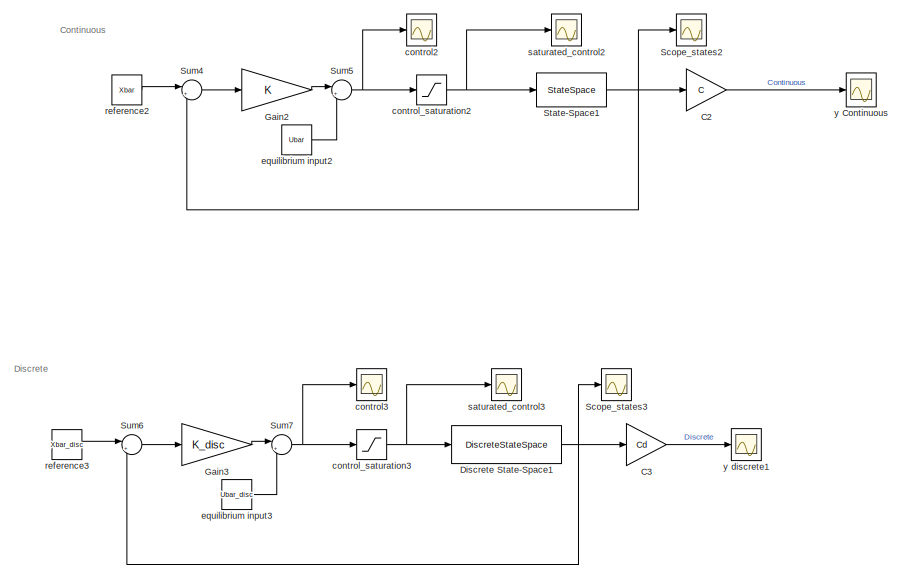
[diagram: root canvas - part 1/2, left side, full height]
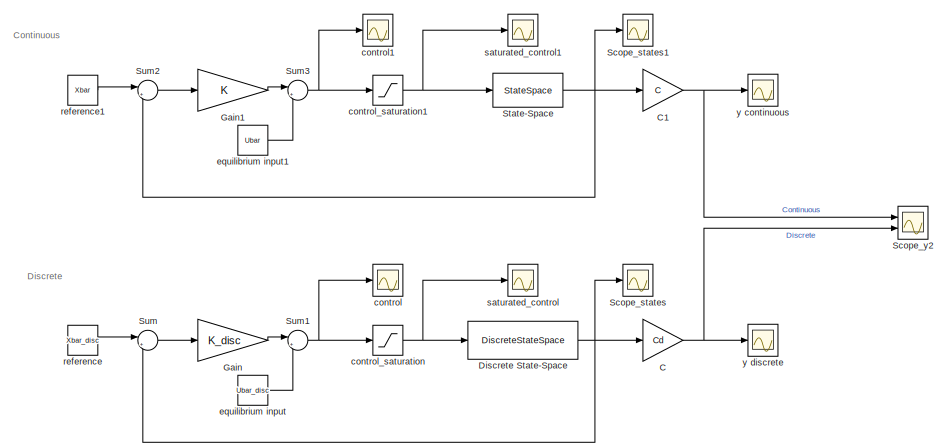
[diagram: root canvas - part 2/2, middle right region]
MODEL slx_b519e00f256d
KIND model
CONFIG AbsTol = auto
CONFIG EnableMultiTasking = off
CONFIG FixedStep = auto
CONFIG MaxStep = auto
CONFIG MinStep = auto
CONFIG RelTol = 1e-3
CONFIG SampleTimeConstraint = Unconstrained
CONFIG SolverName = VariableStepAuto
CONFIG StartTime = 0.0
CONFIG StopTime = 10.0
BLOCK [Gain] C
  Gain = Cd
  Multiplication = Matrix(K*u)
BLOCK [Gain] C1
  Gain = C
  Multiplication = Matrix(K*u)
BLOCK [Gain] C2
  Gain = C
  Multiplication = Matrix(K*u)
BLOCK [Gain] C3
  Gain = Cd
  Multiplication = Matrix(K*u)
BLOCK [DiscreteStateSpace] Discrete State-Space
  A = Ad
  B = Bd
  C = C_states
  D = D_states
  SampleTime = Ts
BLOCK [DiscreteStateSpace] Discrete State-Space1
  A = Ad
  B = Bd
  C = C_states
  D = D_states
  SampleTime = Ts
BLOCK [Gain] Gain
  Gain = K_disc
  Multiplication = Matrix(K*u)
BLOCK [Gain] Gain1
  Gain = K
  Multiplication = Matrix(K*u)
BLOCK [Gain] Gain2
  Gain = K
  Multiplication = Matrix(K*u)
BLOCK [Gain] Gain3
  Gain = K_disc
  Multiplication = Matrix(K*u)
BLOCK [Scope] Scope_states
  Floating = off
  NumInputPorts = 1
  Ports = [1]
  ScopeSpecificationString = Simulink.scopes.TimeScopeBlockCfg('CurrentConfiguration', extmgr.ConfigurationSet(extmgr.Configuration('Core','General UI',true),extmgr.Configuration('Core','Source UI',true),extmgr.Configuration('Sources','WiredSimulink',true,'DataLoggingSaveFormat','StructureWithTime','DataLoggingLimitDataPoints',true,'DataLoggingDecimation','1','DataLoggingDecimateData',true,'DataLoggingVariableName','ScopeData...<+2094ch>
BLOCK [Scope] Scope_states1
  Floating = off
  NumInputPorts = 1
  Ports = [1]
  ScopeSpecificationString = Simulink.scopes.TimeScopeBlockCfg('CurrentConfiguration', extmgr.ConfigurationSet(extmgr.Configuration('Core','General UI',true),extmgr.Configuration('Core','Source UI',true),extmgr.Configuration('Sources','WiredSimulink',true,'DataLoggingSaveFormat','StructureWithTime','DataLoggingLimitDataPoints',true,'DataLoggingDecimation','1','DataLoggingDecimateData',true,'DataLoggingVariableName','ScopeData...<+1960ch>
BLOCK [Scope] Scope_states2
  Floating = off
  NumInputPorts = 1
  Ports = [1]
  ScopeSpecificationString = Simulink.scopes.TimeScopeBlockCfg('CurrentConfiguration', extmgr.ConfigurationSet(extmgr.Configuration('Core','General UI',true),extmgr.Configuration('Core','Source UI',true),extmgr.Configuration('Sources','WiredSimulink',true,'DataLoggingSaveFormat','StructureWithTime','DataLoggingLimitDataPoints',true,'DataLoggingDecimation','1','DataLoggingDecimateData',true,'DataLoggingVariableName','ScopeData...<+1972ch>
BLOCK [Scope] Scope_states3
  Floating = off
  NumInputPorts = 1
  Ports = [1]
  ScopeSpecificationString = Simulink.scopes.TimeScopeBlockCfg('CurrentConfiguration', extmgr.ConfigurationSet(extmgr.Configuration('Core','General UI',true),extmgr.Configuration('Core','Source UI',true),extmgr.Configuration('Sources','WiredSimulink',true,'DataLoggingSaveFormat','StructureWithTime','DataLoggingLimitDataPoints',true,'DataLoggingDecimation','1','DataLoggingDecimateData',true,'DataLoggingVariableName','ScopeData...<+2076ch>
BLOCK [Scope] Scope_y2
  Floating = off
  NumInputPorts = 2
  Ports = [2]
  ScopeSpecificationString = Simulink.scopes.TimeScopeBlockCfg('CurrentConfiguration', extmgr.ConfigurationSet(extmgr.Configuration('Core','General UI',true),extmgr.Configuration('Core','Source UI',true),extmgr.Configuration('Sources','WiredSimulink',true,'DataLoggingSaveFormat','StructureWithTime','DataLoggingLimitDataPoints',true,'DataLoggingDecimation','1','DataLoggingDecimateData',true,'DataLoggingVariableName','ScopeData...<+1836ch>
BLOCK [StateSpace] State-Space
  A = A
  B = B
  C = C_states
  D = D_states
  InitialCondition = 0
  Ports = [1, 1]
BLOCK [StateSpace] State-Space1
  A = A
  B = B
  C = C_states
  D = D_states
  InitialCondition = 0
  Ports = [1, 1]
BLOCK [Sum] Sum
  Inputs = |+-
  Ports = [2, 1]
BLOCK [Sum] Sum1
  Inputs = |++
  Ports = [2, 1]
BLOCK [Sum] Sum2
  Inputs = |+-
  Ports = [2, 1]
BLOCK [Sum] Sum3
  Inputs = |++
  Ports = [2, 1]
BLOCK [Sum] Sum4
  Inputs = |+-
  Ports = [2, 1]
BLOCK [Sum] Sum5
  Inputs = |++
  Ports = [2, 1]
BLOCK [Sum] Sum6
  Inputs = |+-
  Ports = [2, 1]
BLOCK [Sum] Sum7
  Inputs = |++
  Ports = [2, 1]
BLOCK [Scope] control
  Floating = off
  NumInputPorts = 1
  Ports = [1]
  ScopeSpecificationString = Simulink.scopes.TimeScopeBlockCfg('CurrentConfiguration', extmgr.ConfigurationSet(extmgr.Configuration('Core','General UI',true),extmgr.Configuration('Core','Source UI',true),extmgr.Configuration('Sources','WiredSimulink',true,'DataLoggingVariableName','ScopeData3','DataLoggingSaveFormat','StructureWithTime','DataLoggingLimitDataPoints',true,'DataLoggingDecimation','1','DataLoggingDecimateData',tr...<+1698ch>  <repeated x3 — deduplicated; at blocks: control, control1, control2>
BLOCK [Scope] control1
  Floating = off
  NumInputPorts = 1
  Ports = [1]
BLOCK [Scope] control2
  Floating = off
  NumInputPorts = 1
  Ports = [1]
BLOCK [Scope] control3
  Floating = off
  NumInputPorts = 1
  Ports = [1]
  ScopeSpecificationString = Simulink.scopes.TimeScopeBlockCfg('CurrentConfiguration', extmgr.ConfigurationSet(extmgr.Configuration('Core','General UI',true),extmgr.Configuration('Core','Source UI',true),extmgr.Configuration('Sources','WiredSimulink',true,'DataLoggingVariableName','ScopeData6','DataLoggingSaveFormat','StructureWithTime','DataLoggingLimitDataPoints',true,'DataLoggingDecimation','1','DataLoggingDecimateData',tr...<+1698ch>
BLOCK [Saturate] control_saturation
  LowerLimit = U_min
  UpperLimit = U_max
BLOCK [Saturate] control_saturation1
  LowerLimit = U_min
  UpperLimit = U_max
BLOCK [Saturate] control_saturation2
  LowerLimit = U_min
  UpperLimit = U_max
BLOCK [Saturate] control_saturation3
  LowerLimit = U_min
  UpperLimit = U_max
BLOCK [Constant] equilibrium input
  Value = Ubar_disc
BLOCK [Constant] equilibrium input1
  Value = Ubar
BLOCK [Constant] equilibrium input2
  Value = Ubar
BLOCK [Constant] equilibrium input3
  Value = Ubar_disc
BLOCK [Constant] reference
  Value = Xbar_disc
BLOCK [Constant] reference1
  Value = Xbar
BLOCK [Constant] reference2
  Value = Xbar
BLOCK [Constant] reference3
  Value = Xbar_disc
BLOCK [Scope] saturated_control
  Floating = off
  NumInputPorts = 1
  Ports = [1]
  ScopeSpecificationString = Simulink.scopes.TimeScopeBlockCfg('CurrentConfiguration', extmgr.ConfigurationSet(extmgr.Configuration('Core','General UI',true),extmgr.Configuration('Core','Source UI',true),extmgr.Configuration('Sources','WiredSimulink',true,'DataLoggingSaveFormat','StructureWithTime','DataLoggingLimitDataPoints',true,'DataLoggingDecimation','1','DataLoggingDecimateData',true,'DataLoggingVariableName','ScopeData...<+1987ch>
BLOCK [Scope] saturated_control1
  Floating = off
  NumInputPorts = 1
  Ports = [1]
  ScopeSpecificationString = Simulink.scopes.TimeScopeBlockCfg('CurrentConfiguration', extmgr.ConfigurationSet(extmgr.Configuration('Core','General UI',true),extmgr.Configuration('Core','Source UI',true),extmgr.Configuration('Sources','WiredSimulink',true,'DataLoggingVariableName','ScopeData4','DataLoggingSaveFormat','StructureWithTime','DataLoggingLimitDataPoints',true,'DataLoggingDecimation','1','DataLoggingDecimateData',tr...<+1974ch>
BLOCK [Scope] saturated_control2
  Floating = off
  NumInputPorts = 1
  Ports = [1]
  ScopeSpecificationString = Simulink.scopes.TimeScopeBlockCfg('CurrentConfiguration', extmgr.ConfigurationSet(extmgr.Configuration('Core','General UI',true),extmgr.Configuration('Core','Source UI',true),extmgr.Configuration('Sources','WiredSimulink',true,'DataLoggingVariableName','ScopeData4','DataLoggingSaveFormat','StructureWithTime','DataLoggingLimitDataPoints',true,'DataLoggingDecimation','1','DataLoggingDecimateData',tr...<+1974ch>
BLOCK [Scope] saturated_control3
  Floating = off
  NumInputPorts = 1
  Ports = [1]
  ScopeSpecificationString = Simulink.scopes.TimeScopeBlockCfg('CurrentConfiguration', extmgr.ConfigurationSet(extmgr.Configuration('Core','General UI',true),extmgr.Configuration('Core','Source UI',true),extmgr.Configuration('Sources','WiredSimulink',true,'DataLoggingSaveFormat','StructureWithTime','DataLoggingLimitDataPoints',true,'DataLoggingDecimation','1','DataLoggingDecimateData',true,'DataLoggingVariableName','ScopeData...<+1987ch>
BLOCK [Scope] y Continuous
  Floating = off
  NumInputPorts = 1
  Ports = [1]
  ScopeSpecificationString = Simulink.scopes.TimeScopeBlockCfg('CurrentConfiguration', extmgr.ConfigurationSet(extmgr.Configuration('Core','General UI',true),extmgr.Configuration('Core','Source UI',true),extmgr.Configuration('Sources','WiredSimulink',true,'DataLoggingSaveFormat','StructureWithTime','DataLoggingLimitDataPoints',true,'DataLoggingDecimation','1','DataLoggingDecimateData',true,'DataLoggingVariableName','ScopeData...<+1825ch>
BLOCK [Scope] y continuous
  Floating = off
  NumInputPorts = 1
  Ports = [1]
  ScopeSpecificationString = Simulink.scopes.TimeScopeBlockCfg('CurrentConfiguration', extmgr.ConfigurationSet(extmgr.Configuration('Core','General UI',true),extmgr.Configuration('Core','Source UI',true),extmgr.Configuration('Sources','WiredSimulink',true,'DataLoggingSaveFormat','StructureWithTime','DataLoggingLimitDataPoints',true,'DataLoggingDecimation','1','DataLoggingDecimateData',true,'DataLoggingVariableName','ScopeData...<+1774ch>
BLOCK [Scope] y discrete
  Floating = off
  NumInputPorts = 1
  Ports = [1]
  ScopeSpecificationString = Simulink.scopes.TimeScopeBlockCfg('CurrentConfiguration', extmgr.ConfigurationSet(extmgr.Configuration('Core','General UI',true),extmgr.Configuration('Core','Source UI',true),extmgr.Configuration('Sources','WiredSimulink',true,'DataLoggingSaveFormat','StructureWithTime','DataLoggingLimitDataPoints',true,'DataLoggingDecimation','1','DataLoggingDecimateData',true,'DataLoggingVariableName','ScopeData...<+1768ch>
BLOCK [Scope] y discrete1
  Floating = off
  NumInputPorts = 1
  Ports = [1]
  ScopeSpecificationString = Simulink.scopes.TimeScopeBlockCfg('CurrentConfiguration', extmgr.ConfigurationSet(extmgr.Configuration('Core','General UI',true),extmgr.Configuration('Core','Source UI',true),extmgr.Configuration('Sources','WiredSimulink',true,'DataLoggingSaveFormat','StructureWithTime','DataLoggingLimitDataPoints',true,'DataLoggingDecimation','1','DataLoggingDecimateData',true,'DataLoggingVariableName','ScopeData...<+1801ch>
ANNOTATION (root): Continuous
ANNOTATION (root): Discrete
NET C1:1 -> Scope_y2:1, y continuous:1
LINE C2:1 -> y Continuous:1
LINE C3:1 -> y discrete1:1
NET C:1 -> Scope_y2:2, y discrete:1
NET Discrete State-Space1:1 -> C3:1, Scope_states3:1, Sum6:2
NET Discrete State-Space:1 -> C:1, Scope_states:1, Sum:2
LINE Gain1:1 -> Sum3:1
LINE Gain2:1 -> Sum5:1
LINE Gain3:1 -> Sum7:1
LINE Gain:1 -> Sum1:1
NET State-Space1:1 -> C2:1, Scope_states2:1, Sum4:2
NET State-Space:1 -> C1:1, Scope_states1:1, Sum2:2
NET Sum1:1 -> control:1, control_saturation:1
LINE Sum2:1 -> Gain1:1
NET Sum3:1 -> control1:1, control_saturation1:1
LINE Sum4:1 -> Gain2:1
NET Sum5:1 -> control2:1, control_saturation2:1
LINE Sum6:1 -> Gain3:1
NET Sum7:1 -> control3:1, control_saturation3:1
LINE Sum:1 -> Gain:1
NET control_saturation1:1 -> State-Space:1, saturated_control1:1
NET control_saturation2:1 -> State-Space1:1, saturated_control2:1
NET control_saturation3:1 -> Discrete State-Space1:1, saturated_control3:1
NET control_saturation:1 -> Discrete State-Space:1, saturated_control:1
LINE equilibrium input1:1 -> Sum3:2
LINE equilibrium input2:1 -> Sum5:2
LINE equilibrium input3:1 -> Sum7:2
LINE equilibrium input:1 -> Sum1:2
LINE reference1:1 -> Sum2:1
LINE reference2:1 -> Sum4:1
LINE reference3:1 -> Sum6:1
LINE reference:1 -> Sum:1
note: NET lines group one-source signal fan-out (src -> all destinations, sorted); 1:1 wires keep LINE
